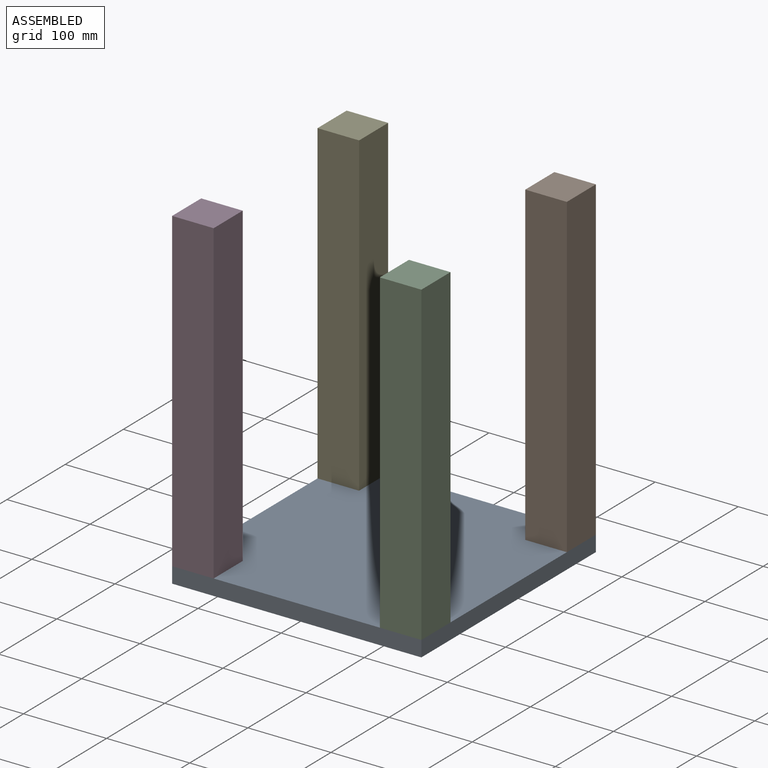
[diagram: assembled view]
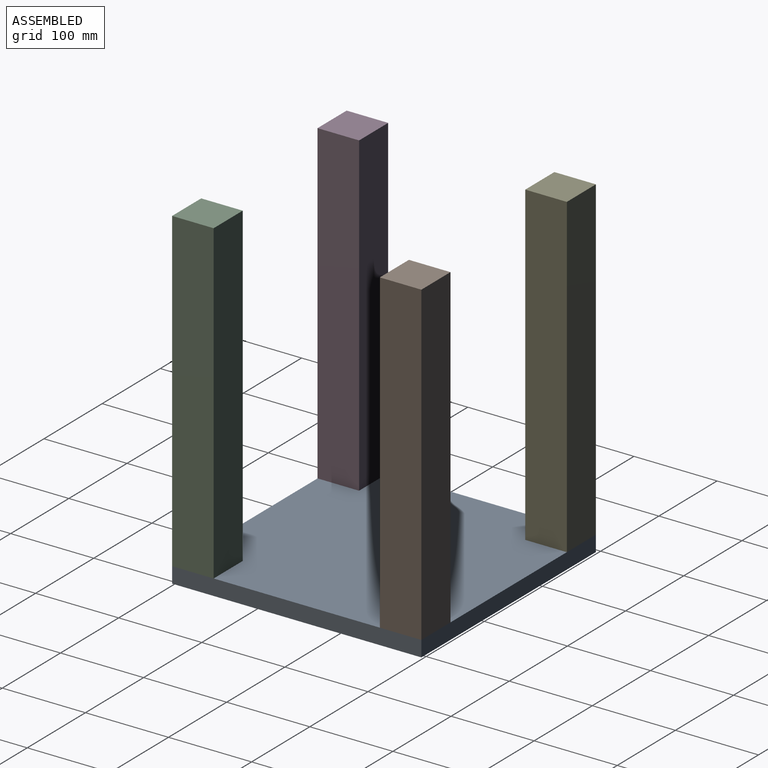
[diagram: assembled view, second angle]
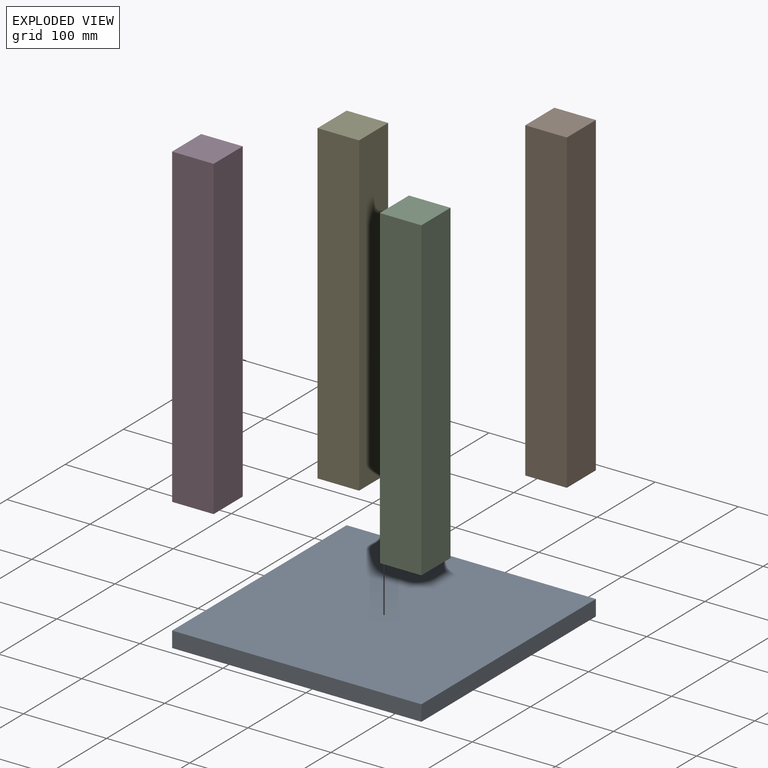
[diagram: exploded view]
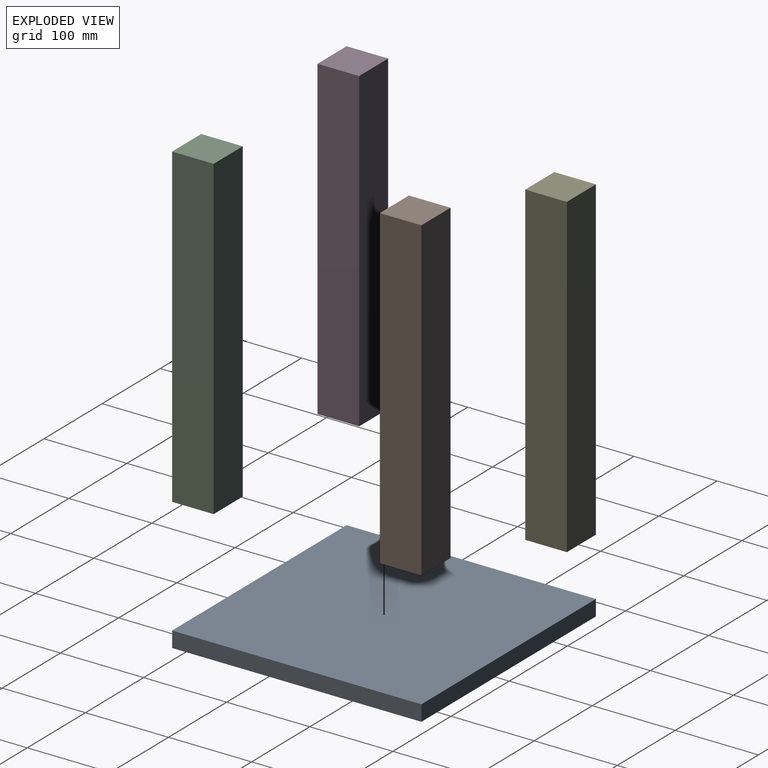
[diagram: exploded view, second angle]
ASSEMBLY  parts=5 mates=4
PART A: 6 faces, bbox 300x300x19 mm
  f0: plane 300x19mm, normal (0,1,0), area 5700mm2, adj f1,f3,f4,f5
  f1: plane 300x19mm, normal (-1,0,0), area 5700mm2, adj f0,f2,f4,f5
  f2: plane 300x19mm, normal (0,-1,0), area 5700mm2, adj f1,f3,f4,f5
  f3: plane 300x19mm, normal (1,0,0), area 5700mm2, adj f0,f2,f4,f5
  f4: plane 300x300mm, normal (0,0,1), area 90000mm2, adj f0,f1,f2,f3
  f5: plane 300x300mm, normal (0,0,-1), area 90000mm2, adj f0,f1,f2,f3
PART B: 6 faces, bbox 50x50x381 mm
  f0: plane 50x50mm, normal (0,0,1), area 2500mm2, adj f1,f3,f4,f5
  f1: plane 381x50mm, normal (-1,0,0), area 19050mm2, adj f0,f2,f4,f5
  f2: plane 50x50mm, normal (0,0,-1), area 2500mm2, adj f1,f3,f4,f5
  f3: plane 381x50mm, normal (1,0,0), area 19050mm2, adj f0,f2,f4,f5
  f4: plane 381x50mm, normal (0,-1,0), area 19050mm2, adj f0,f1,f2,f3
  f5: plane 381x50mm, normal (0,1,0), area 19050mm2, adj f0,f1,f2,f3
PART C: same geometry as B
PART D: same geometry as B
PART E: same geometry as B
PLACE A t=(-33.78,-418.78,-208.62)mm
PLACE B t=(-21.79,-105.71,-150.73)mm
PLACE C t=(-21.79,-355.71,-150.73)mm
PLACE D t=(-271.79,-355.71,-150.73)mm
PLACE E t=(-271.79,-105.71,-150.73)mm
MATE fastened C.f2 <-> A.f4  axis (0,0,1) through (-57.2,-405.71,-189.62)mm
MATE fastened E.f2 <-> A.f4  axis (0,0,-1) through (-357.2,-105.71,-189.62)mm
MATE fastened B.f2 <-> A.f4  axis (0,0,-1) through (-57.2,-105.71,-189.62)mm
MATE fastened D.f2 <-> A.f4  axis (0,0,-1) through (-357.2,-405.71,-189.62)mm
